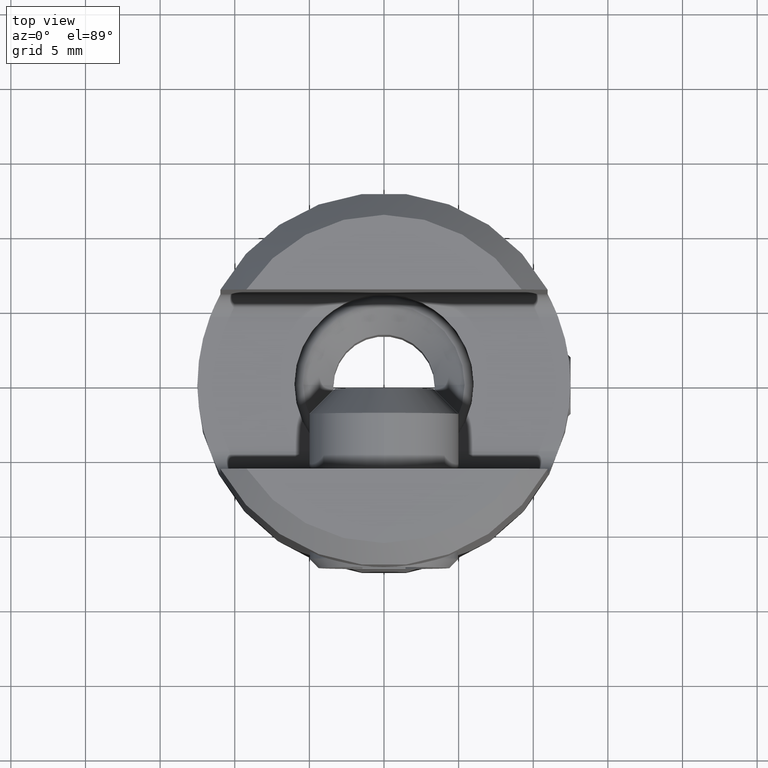
[diagram: clean part render]
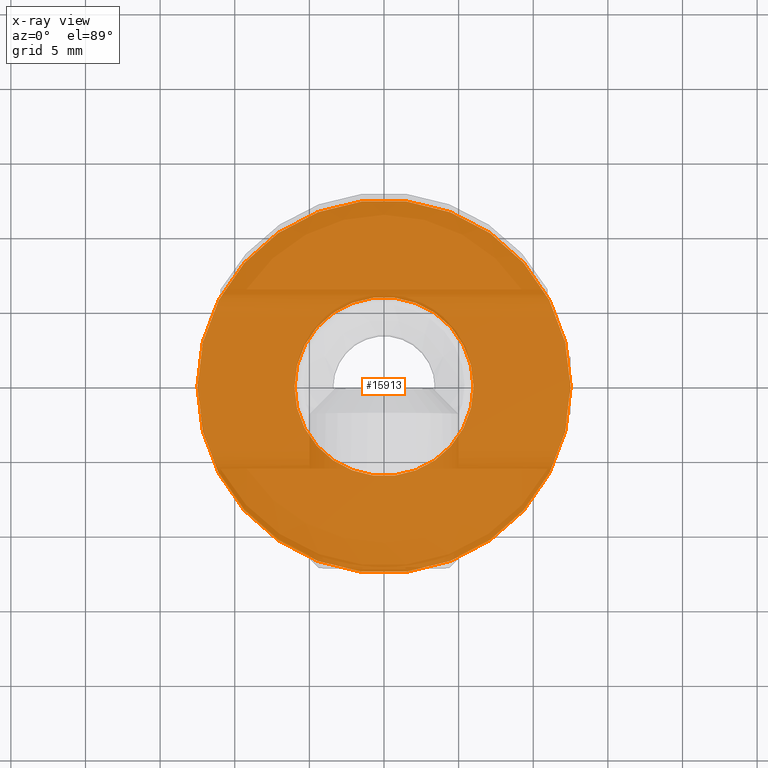
[diagram: x-ray — body ghosted, one internal face saturated and labeled with its STEP entity id]
A machine part, top view, then the same camera in x-ray: the body is ghosted and one INTERNAL B-rep face — a face not visible from any outside direction — is saturated and labeled: STEP entity #15913.
In plain terms, the highlighted planar face has unit normal (0, 0, -1).
Its self-contained STEP definition (entity closure, byte-faithful):
#594 = VERTEX_POINT ( 'NONE', #29645 ) ;
#732 = ORIENTED_EDGE ( 'NONE', *, *, #29841, .T. ) ;
#1007 = CARTESIAN_POINT ( 'NONE',  ( -6.000000000000000000, 7.347880794884119736E-16, -1.750000000000001554 ) ) ;
#1636 = CARTESIAN_POINT ( 'NONE',  ( 0.000000000000000000, 6.000000000000000000, -1.750000000000001554 ) ) ;
#1719 = DIRECTION ( 'NONE',  ( -0.000000000000000000, -0.000000000000000000, 1.000000000000000000 ) ) ;
#2405 = ORIENTED_EDGE ( 'NONE', *, *, #32036, .T. ) ;
#3586 = EDGE_LOOP ( 'NONE', ( #4391, #19491 ) ) ;
#3593 = AXIS2_PLACEMENT_3D ( 'NONE', #22883, #7834, #12899 ) ;
#3863 = CIRCLE ( 'NONE', #23589, 12.50000000000000000 ) ;
#4391 = ORIENTED_EDGE ( 'NONE', *, *, #22369, .F. ) ;
#4447 = DIRECTION ( 'NONE',  ( 1.000000000000000000, 0.000000000000000000, 0.000000000000000000 ) ) ;
#6841 = CIRCLE ( 'NONE', #3593, 6.000000000000000000 ) ;
#7516 = DIRECTION ( 'NONE',  ( -0.000000000000000000, -0.000000000000000000, 1.000000000000000000 ) ) ;
#7834 = DIRECTION ( 'NONE',  ( -0.000000000000000000, -0.000000000000000000, 1.000000000000000000 ) ) ;
#8655 = FACE_BOUND ( 'NONE', #3586, .T. ) ;
#12698 = DIRECTION ( 'NONE',  ( 1.000000000000000000, 0.000000000000000000, 0.000000000000000000 ) ) ;
#12899 = DIRECTION ( 'NONE',  ( 1.000000000000000000, 0.000000000000000000, 0.000000000000000000 ) ) ;
#13195 = VERTEX_POINT ( 'NONE', #18985 ) ;
#15117 = CARTESIAN_POINT ( 'NONE',  ( 0.000000000000000000, 0.000000000000000000, -1.750000000000001554 ) ) ;
#15448 = CIRCLE ( 'NONE', #31306, 6.000000000000000000 ) ;
#15913 = ADVANCED_FACE ( 'NONE', ( #8655, #21625 ), #19018, .F. ) ;
#16900 = CARTESIAN_POINT ( 'NONE',  ( 0.000000000000000000, 0.000000000000000000, -1.750000000000001554 ) ) ;
#17145 = DIRECTION ( 'NONE',  ( -1.000000000000000000, 0.000000000000000000, -0.000000000000000000 ) ) ;
#18985 = CARTESIAN_POINT ( 'NONE',  ( 12.50000000000000000, 0.000000000000000000, -1.750000000000001554 ) ) ;
#19018 = PLANE ( 'NONE',  #23440 ) ;
#19235 = DIRECTION ( 'NONE',  ( 0.000000000000000000, 0.000000000000000000, -1.000000000000000000 ) ) ;
#19457 = EDGE_CURVE ( 'NONE', #32211, #594, #6841, .T. ) ;
#19491 = ORIENTED_EDGE ( 'NONE', *, *, #19457, .F. ) ;
#21625 = FACE_OUTER_BOUND ( 'NONE', #29989, .T. ) ;
#22369 = EDGE_CURVE ( 'NONE', #594, #32211, #15448, .T. ) ;
#22798 = DIRECTION ( 'NONE',  ( -0.000000000000000000, -0.000000000000000000, 1.000000000000000000 ) ) ;
#22883 = CARTESIAN_POINT ( 'NONE',  ( 0.000000000000000000, 0.000000000000000000, -1.750000000000001554 ) ) ;
#23440 = AXIS2_PLACEMENT_3D ( 'NONE', #1636, #19235, #17145 ) ;
#23589 = AXIS2_PLACEMENT_3D ( 'NONE', #32621, #7516, #25120 ) ;
#25120 = DIRECTION ( 'NONE',  ( 1.000000000000000000, 0.000000000000000000, 0.000000000000000000 ) ) ;
#27153 = AXIS2_PLACEMENT_3D ( 'NONE', #16900, #1719, #4447 ) ;
#27686 = CIRCLE ( 'NONE', #27153, 12.50000000000000000 ) ;
#28424 = CARTESIAN_POINT ( 'NONE',  ( -12.50000000000000000, 1.530808498934191521E-15, -1.750000000000001554 ) ) ;
#29645 = CARTESIAN_POINT ( 'NONE',  ( 6.000000000000000000, 0.000000000000000000, -1.750000000000001554 ) ) ;
#29841 = EDGE_CURVE ( 'NONE', #31559, #13195, #27686, .T. ) ;
#29989 = EDGE_LOOP ( 'NONE', ( #2405, #732 ) ) ;
#31306 = AXIS2_PLACEMENT_3D ( 'NONE', #15117, #22798, #12698 ) ;
#31559 = VERTEX_POINT ( 'NONE', #28424 ) ;
#32036 = EDGE_CURVE ( 'NONE', #13195, #31559, #3863, .T. ) ;
#32211 = VERTEX_POINT ( 'NONE', #1007 ) ;
#32621 = CARTESIAN_POINT ( 'NONE',  ( 0.000000000000000000, 0.000000000000000000, -1.750000000000001554 ) ) ;